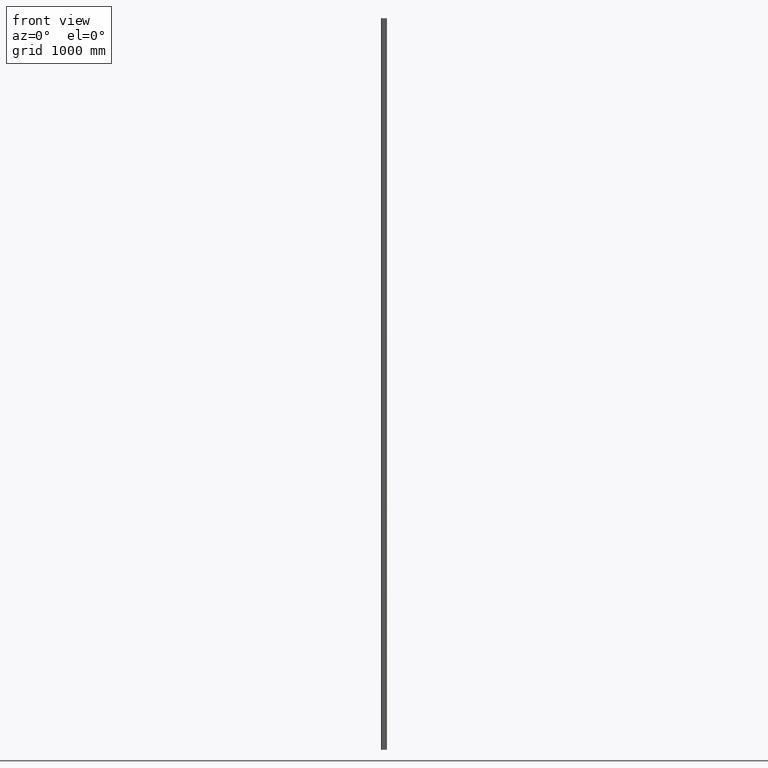
[diagram: clean part render]
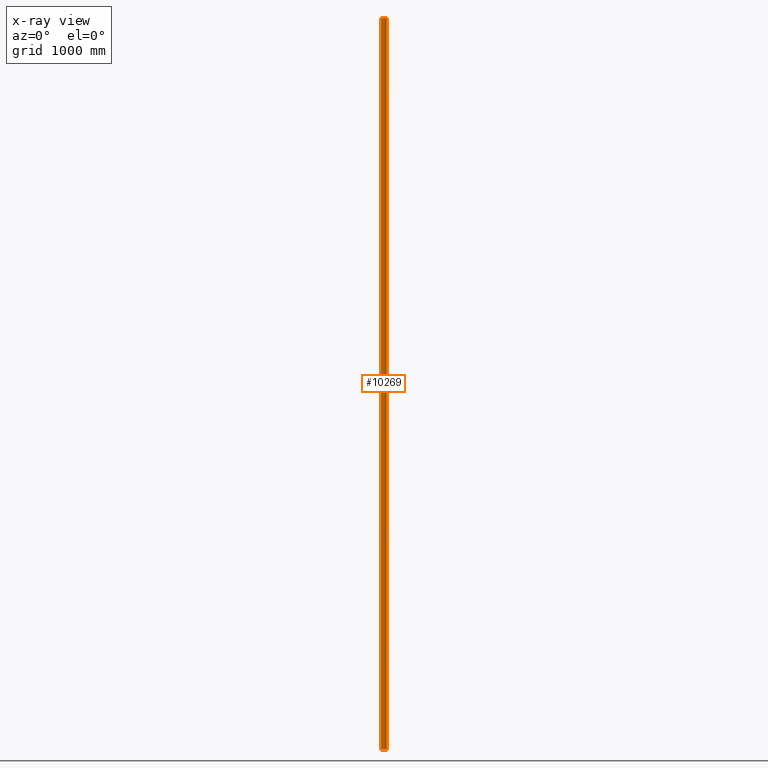
[diagram: x-ray — body ghosted, one internal face saturated and labeled with its STEP entity id]
A machine part, front view, then the same camera in x-ray: the body is ghosted and one INTERNAL B-rep face — a face not visible from any outside direction — is saturated and labeled: STEP entity #10269.
In plain terms, the highlighted cylindrical surface (edge-blend (fillet) strip) has radius 22.65 mm, axis along (0, 0, 1).
Its self-contained STEP definition (entity closure, byte-faithful):
#693 = EDGE_CURVE ( 'NONE', #7496, #12836, #12008, .T. ) ;
#818 = ORIENTED_EDGE ( 'NONE', *, *, #14721, .T. ) ;
#820 = AXIS2_PLACEMENT_3D ( 'NONE', #10096, #12578, #11277 ) ;
#1281 = DIRECTION ( 'NONE',  ( 1.000000000000000000, 0.000000000000000000, 0.000000000000000000 ) ) ;
#1874 = CARTESIAN_POINT ( 'NONE',  ( 1.045905862409840323E-15, 16.97122564813749790, 3000.000000000000000 ) ) ;
#1936 = VERTEX_POINT ( 'NONE', #13418 ) ;
#2042 = LINE ( 'NONE', #11489, #7754 ) ;
#2272 = CARTESIAN_POINT ( 'NONE',  ( 15.84988713318283615, 0.7908802295327060916, 3000.000000000000000 ) ) ;
#3562 = CIRCLE ( 'NONE', #4694, 22.64999999999999858 ) ;
#3736 = DIRECTION ( 'NONE',  ( 0.000000000000000000, 0.000000000000000000, 1.000000000000000000 ) ) ;
#3800 = DIRECTION ( 'NONE',  ( 0.000000000000000000, 0.000000000000000000, 1.000000000000000000 ) ) ;
#3853 = CARTESIAN_POINT ( 'NONE',  ( -15.84988713318285747, 0.7908802295327234111, -3000.000000000000000 ) ) ;
#3916 = CARTESIAN_POINT ( 'NONE',  ( -15.84988713318285747, 0.7908802295327234111, -3000.000000000000000 ) ) ;
#4625 = CIRCLE ( 'NONE', #10137, 22.64999999999999858 ) ;
#4694 = AXIS2_PLACEMENT_3D ( 'NONE', #7202, #3736, #1281 ) ;
#4781 = ORIENTED_EDGE ( 'NONE', *, *, #8285, .F. ) ;
#5237 = EDGE_CURVE ( 'NONE', #1936, #6934, #2042, .T. ) ;
#6094 = EDGE_LOOP ( 'NONE', ( #818, #14157, #4781, #14376 ) ) ;
#6711 = DIRECTION ( 'NONE',  ( 0.000000000000000000, 0.000000000000000000, 1.000000000000000000 ) ) ;
#6806 = CARTESIAN_POINT ( 'NONE',  ( -15.84988713318285747, 0.7908802295327234111, 3000.000000000000000 ) ) ;
#6934 = VERTEX_POINT ( 'NONE', #2272 ) ;
#7202 = CARTESIAN_POINT ( 'NONE',  ( 1.045905862409840323E-15, 16.97122564813749790, -3000.000000000000000 ) ) ;
#7496 = VERTEX_POINT ( 'NONE', #3916 ) ;
#7754 = VECTOR ( 'NONE', #12678, 1000.000000000000000 ) ;
#8285 = EDGE_CURVE ( 'NONE', #1936, #7496, #3562, .T. ) ;
#10096 = CARTESIAN_POINT ( 'NONE',  ( 1.045905862409840323E-15, 16.97122564813749790, -3000.000000000000000 ) ) ;
#10137 = AXIS2_PLACEMENT_3D ( 'NONE', #1874, #6711, #14989 ) ;
#10269 = ADVANCED_FACE ( 'NONE', ( #11276 ), #13308, .F. ) ;
#11276 = FACE_OUTER_BOUND ( 'NONE', #6094, .T. ) ;
#11277 = DIRECTION ( 'NONE',  ( 1.000000000000000000, 0.000000000000000000, 0.000000000000000000 ) ) ;
#11489 = CARTESIAN_POINT ( 'NONE',  ( 15.84988713318283615, 0.7908802295327060916, -3000.000000000000000 ) ) ;
#12008 = LINE ( 'NONE', #3853, #14050 ) ;
#12578 = DIRECTION ( 'NONE',  ( 0.000000000000000000, 0.000000000000000000, 1.000000000000000000 ) ) ;
#12678 = DIRECTION ( 'NONE',  ( 0.000000000000000000, 0.000000000000000000, 1.000000000000000000 ) ) ;
#12836 = VERTEX_POINT ( 'NONE', #6806 ) ;
#13308 = CYLINDRICAL_SURFACE ( 'NONE', #820, 22.64999999999999858 ) ;
#13418 = CARTESIAN_POINT ( 'NONE',  ( 15.84988713318283615, 0.7908802295327060916, -3000.000000000000000 ) ) ;
#14050 = VECTOR ( 'NONE', #3800, 1000.000000000000000 ) ;
#14157 = ORIENTED_EDGE ( 'NONE', *, *, #693, .F. ) ;
#14376 = ORIENTED_EDGE ( 'NONE', *, *, #5237, .T. ) ;
#14721 = EDGE_CURVE ( 'NONE', #6934, #12836, #4625, .T. ) ;
#14989 = DIRECTION ( 'NONE',  ( 1.000000000000000000, 0.000000000000000000, 0.000000000000000000 ) ) ;